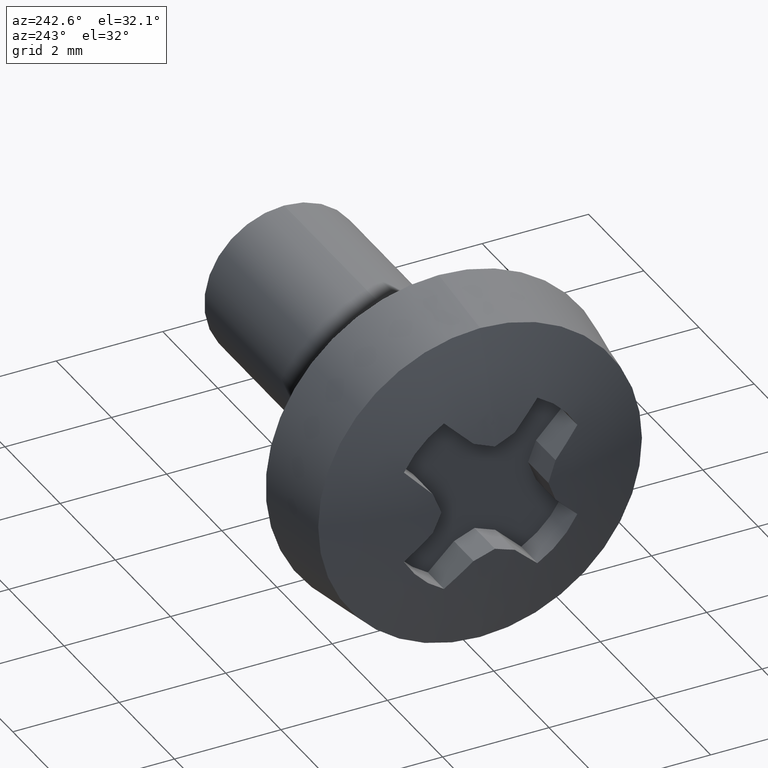
[diagram: clean part render]
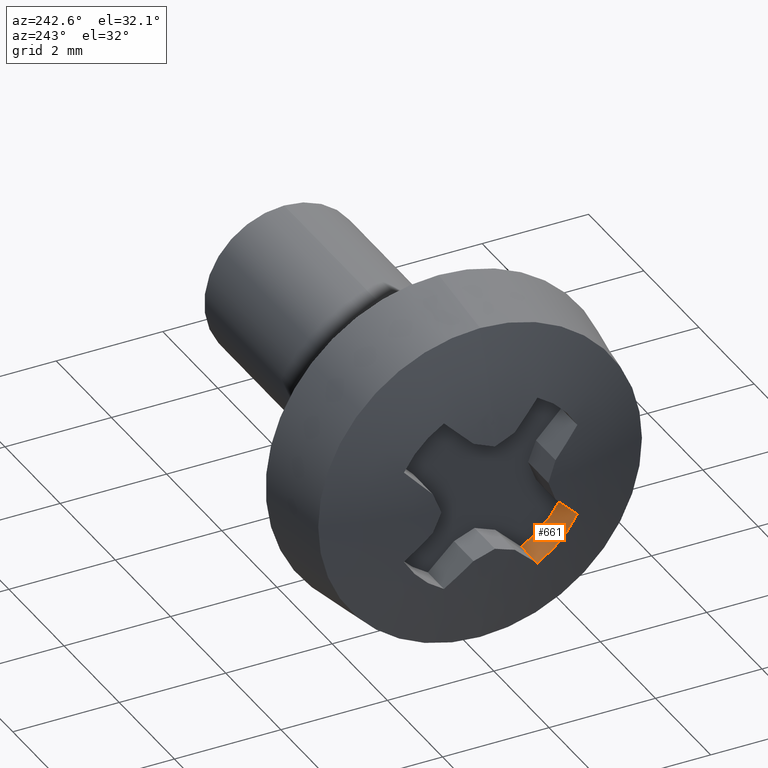
[diagram: same view with one face highlighted and labeled with its STEP entity id]
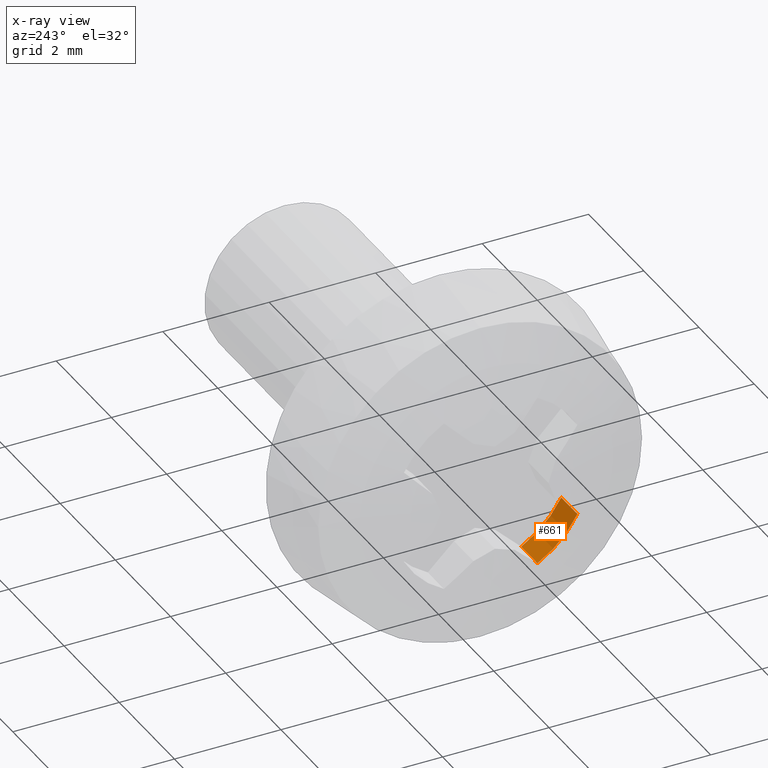
[diagram: x-ray of the same camera — body ghosted, the highlighted face saturated]
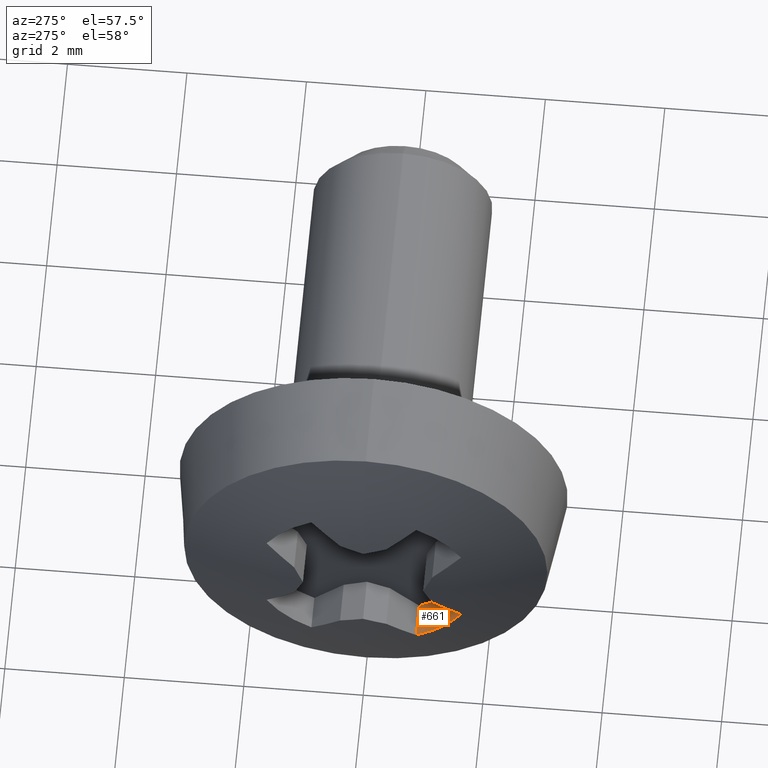
[diagram: same view with one face highlighted and labeled with its STEP entity id]
A machine part, auxiliary view. The second image highlights one B-rep face of the part: STEP entity #661.
The next image is the same camera in x-ray: the body ghosted, the highlighted face saturated — about 0% of this face is hidden behind the body in this view.
A second angle (auxiliary view) of the same face is appended — the face is thin or edge-on in the first view.
In plain terms, the highlighted cylindrical surface (partial cylindrical patch) has radius 1.85 mm, axis along (-1, 0, 0).
Its self-contained STEP definition (entity closure, byte-faithful):
#11 = VERTEX_POINT ( 'NONE', #90 ) ;
#13 = FACE_OUTER_BOUND ( 'NONE', #491, .T. ) ;
#27 = CIRCLE ( 'NONE', #1090, 1.850000000000013200 ) ;
#35 = EDGE_CURVE ( 'NONE', #720, #487, #308, .T. ) ;
#56 = LINE ( 'NONE', #326, #754 ) ;
#90 = CARTESIAN_POINT ( 'NONE',  ( -1.300000000000000300, -0.8778660937063521600, -1.628450527808812200 ) ) ;
#91 = DIRECTION ( 'NONE',  ( 1.000000000000000000, -0.0000000000000000000, -0.0000000000000000000 ) ) ;
#124 = DIRECTION ( 'NONE',  ( 0.0000000000000000000, 0.0000000000000000000, 1.000000000000000000 ) ) ;
#185 = ORIENTED_EDGE ( 'NONE', *, *, #35, .F. ) ;
#187 = ORIENTED_EDGE ( 'NONE', *, *, #516, .T. ) ;
#208 = DIRECTION ( 'NONE',  ( -1.000000000000000000, 0.0000000000000000000, 0.0000000000000000000 ) ) ;
#258 = AXIS2_PLACEMENT_3D ( 'NONE', #1065, #91, #991 ) ;
#308 = LINE ( 'NONE', #1145, #670 ) ;
#326 = CARTESIAN_POINT ( 'NONE',  ( -1.300000000000000300, -0.8778660937063521600, -1.628450527808812200 ) ) ;
#360 = DIRECTION ( 'NONE',  ( -1.000000000000000000, 0.0000000000000000000, 0.0000000000000000000 ) ) ;
#443 = CARTESIAN_POINT ( 'NONE',  ( -1.300000000000000300, -1.628450527808811300, -0.8778660937063536000 ) ) ;
#454 = DIRECTION ( 'NONE',  ( -1.000000000000000000, 0.0000000000000000000, 0.0000000000000000000 ) ) ;
#476 = EDGE_CURVE ( 'NONE', #11, #818, #56, .T. ) ;
#483 = CARTESIAN_POINT ( 'NONE',  ( -1.300000000000000300, 0.0000000000000000000, 0.0000000000000000000 ) ) ;
#487 = VERTEX_POINT ( 'NONE', #602 ) ;
#491 = EDGE_LOOP ( 'NONE', ( #185, #187, #528, #1071 ) ) ;
#516 = EDGE_CURVE ( 'NONE', #720, #11, #27, .T. ) ;
#528 = ORIENTED_EDGE ( 'NONE', *, *, #476, .T. ) ;
#586 = CARTESIAN_POINT ( 'NONE',  ( -1.883802146954359800, -0.8778660937063521600, -1.628450527808812200 ) ) ;
#602 = CARTESIAN_POINT ( 'NONE',  ( -1.883802146954371800, -1.628450527808811300, -0.8778660937063536000 ) ) ;
#661 = ADVANCED_FACE ( 'NONE', ( #13 ), #1178, .F. ) ;
#670 = VECTOR ( 'NONE', #208, 1000.000000000000000 ) ;
#720 = VERTEX_POINT ( 'NONE', #443 ) ;
#754 = VECTOR ( 'NONE', #454, 1000.000000000000000 ) ;
#818 = VERTEX_POINT ( 'NONE', #586 ) ;
#862 = EDGE_CURVE ( 'NONE', #487, #818, #1132, .T. ) ;
#928 = CARTESIAN_POINT ( 'NONE',  ( -1.300000000000000300, 0.0000000000000000000, 0.0000000000000000000 ) ) ;
#942 = DIRECTION ( 'NONE',  ( 1.000000000000000000, 0.0000000000000000000, 0.0000000000000000000 ) ) ;
#959 = DIRECTION ( 'NONE',  ( 0.0000000000000000000, 0.0000000000000000000, 1.000000000000000000 ) ) ;
#991 = DIRECTION ( 'NONE',  ( 0.0000000000000000000, 0.0000000000000000000, -1.000000000000000000 ) ) ;
#1007 = AXIS2_PLACEMENT_3D ( 'NONE', #483, #360, #124 ) ;
#1065 = CARTESIAN_POINT ( 'NONE',  ( -1.883802146954371800, 0.0000000000000000000, 0.0000000000000000000 ) ) ;
#1071 = ORIENTED_EDGE ( 'NONE', *, *, #862, .F. ) ;
#1090 = AXIS2_PLACEMENT_3D ( 'NONE', #928, #942, #959 ) ;
#1132 = CIRCLE ( 'NONE', #258, 1.850000000000013200 ) ;
#1145 = CARTESIAN_POINT ( 'NONE',  ( -1.300000000000000300, -1.628450527808811300, -0.8778660937063536000 ) ) ;
#1178 = CYLINDRICAL_SURFACE ( 'NONE', #1007, 1.850000000000013200 ) ;